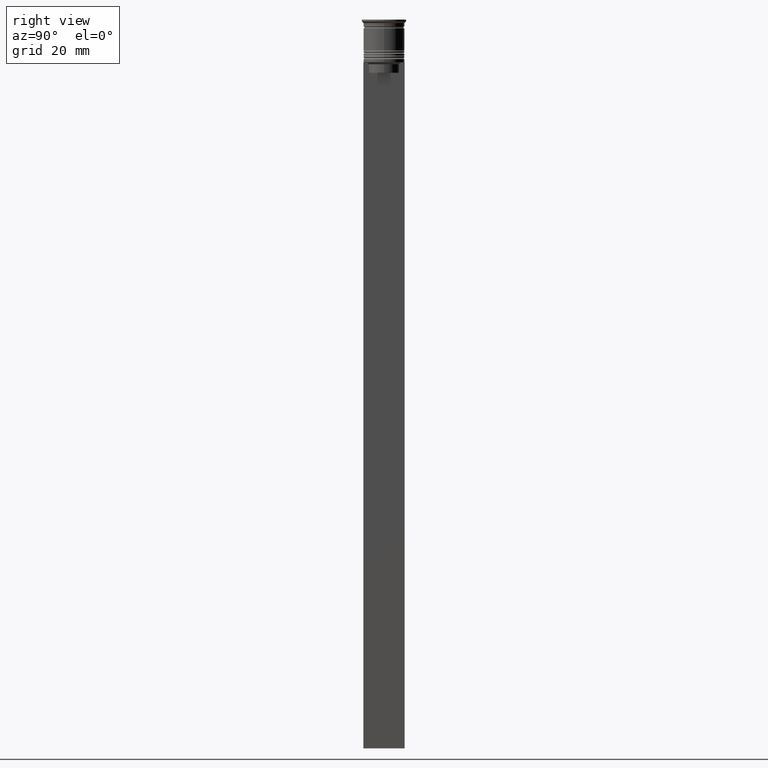
[diagram: clean part render]
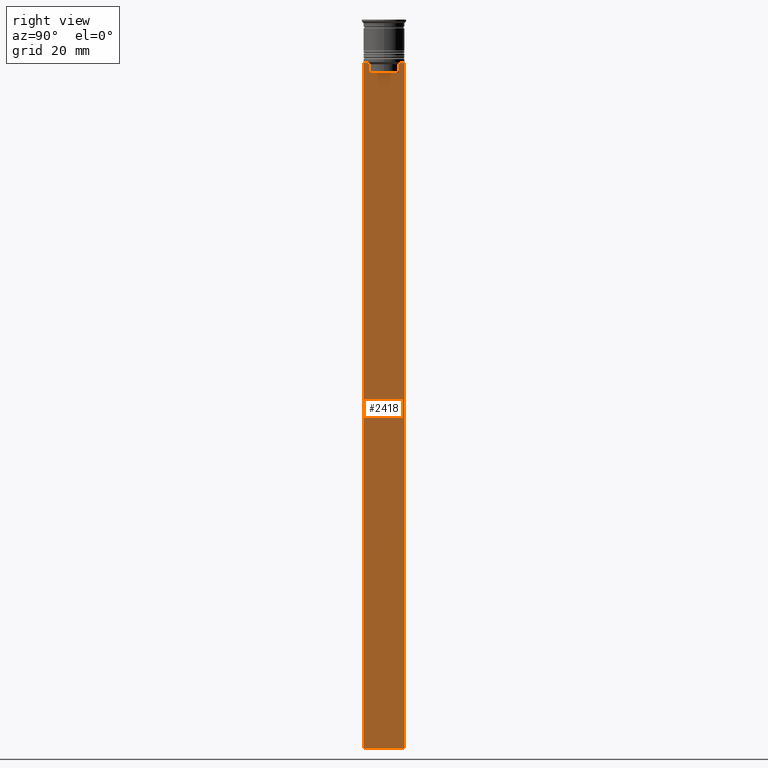
[diagram: same view with one face highlighted and labeled with its STEP entity id]
A machine part, right view. The second image highlights one B-rep face of the part: STEP entity #2418.
In plain terms, the highlighted planar face has unit normal (-1, 0, 0).
Its self-contained STEP definition (entity closure, byte-faithful):
#31 = AXIS2_PLACEMENT_3D ( 'NONE', #1762, #1426, #837 ) ;
#46 = VERTEX_POINT ( 'NONE', #92 ) ;
#53 = VECTOR ( 'NONE', #657, 1000.000000000000000 ) ;
#59 = LINE ( 'NONE', #835, #2350 ) ;
#89 = DIRECTION ( 'NONE',  ( 0.000000000000000000, 0.000000000000000000, -1.000000000000000000 ) ) ;
#92 = CARTESIAN_POINT ( 'NONE',  ( 0.5000000000000002220, -4.371498598878878816, -13.00000000000000178 ) ) ;
#129 = ORIENTED_EDGE ( 'NONE', *, *, #1217, .T. ) ;
#131 = LINE ( 'NONE', #2074, #2451 ) ;
#143 = CARTESIAN_POINT ( 'NONE',  ( 0.5000000000000002220, 6.000000000000000888, -212.5000000000000284 ) ) ;
#156 = CARTESIAN_POINT ( 'NONE',  ( 0.5000000000000002220, 4.874423042781576676, -12.50000000000000000 ) ) ;
#157 = EDGE_CURVE ( 'NONE', #1114, #1414, #1723, .T. ) ;
#160 = ORIENTED_EDGE ( 'NONE', *, *, #1128, .T. ) ;
#186 = EDGE_CURVE ( 'NONE', #46, #1751, #1135, .T. ) ;
#221 = LINE ( 'NONE', #984, #412 ) ;
#226 = DIRECTION ( 'NONE',  ( 0.000000000000000000, -1.000000000000000000, 0.000000000000000000 ) ) ;
#256 = LINE ( 'NONE', #843, #1883 ) ;
#262 = DIRECTION ( 'NONE',  ( -0.000000000000000000, -0.000000000000000000, 1.000000000000000000 ) ) ;
#282 = EDGE_CURVE ( 'NONE', #1434, #46, #59, .T. ) ;
#307 = DIRECTION ( 'NONE',  ( 0.000000000000000000, 1.000000000000000000, 0.000000000000000000 ) ) ;
#329 = CARTESIAN_POINT ( 'NONE',  ( 0.5000000000000002220, -6.000000000000000000, -12.50000000000000000 ) ) ;
#386 = CARTESIAN_POINT ( 'NONE',  ( 0.5000000000000002220, -6.000000000000000000, -12.50000000000000000 ) ) ;
#412 = VECTOR ( 'NONE', #89, 1000.000000000000000 ) ;
#421 = CARTESIAN_POINT ( 'NONE',  ( 0.5000000000000002220, 6.000000000000000888, -12.50000000000000000 ) ) ;
#430 = CARTESIAN_POINT ( 'NONE',  ( 0.5000000000000002220, -4.706831372970962768, -12.66671687695981774 ) ) ;
#436 = CARTESIAN_POINT ( 'NONE',  ( 0.5000000000000002220, 6.000000000000000888, -0.4584054212077061097 ) ) ;
#464 = PLANE ( 'NONE',  #31 ) ;
#507 = EDGE_CURVE ( 'NONE', #1114, #2126, #1947, .T. ) ;
#509 = ORIENTED_EDGE ( 'NONE', *, *, #990, .T. ) ;
#555 = DIRECTION ( 'NONE',  ( 0.000000000000000000, 0.000000000000000000, -1.000000000000000000 ) ) ;
#612 = ORIENTED_EDGE ( 'NONE', *, *, #734, .T. ) ;
#657 = DIRECTION ( 'NONE',  ( 0.000000000000000000, -1.000000000000000000, 0.000000000000000000 ) ) ;
#660 = VECTOR ( 'NONE', #555, 1000.000000000000000 ) ;
#734 = EDGE_CURVE ( 'NONE', #1451, #1434, #256, .T. ) ;
#817 = CARTESIAN_POINT ( 'NONE',  ( 0.5000000000000002220, 4.371498598878878816, -13.00000000000000178 ) ) ;
#821 = EDGE_CURVE ( 'NONE', #1273, #1016, #131, .T. ) ;
#835 = CARTESIAN_POINT ( 'NONE',  ( 0.5000000000000002220, -4.371498598878878816, 0.000000000000000000 ) ) ;
#837 = DIRECTION ( 'NONE',  ( 0.000000000000000000, 0.000000000000000000, 1.000000000000000000 ) ) ;
#843 = CARTESIAN_POINT ( 'NONE',  ( 0.5000000000000002220, 4.399999999999999467, -15.50000000000000000 ) ) ;
#891 = CARTESIAN_POINT ( 'NONE',  ( 0.5000000000000002220, -6.000000000000000000, -0.4584054212077061097 ) ) ;
#917 = CARTESIAN_POINT ( 'NONE',  ( 0.5000000000000002220, -5.878775382679627626, -12.50000000000000000 ) ) ;
#925 = CARTESIAN_POINT ( 'NONE',  ( 0.5000000000000002220, 4.539195634199896467, -12.83338923751318816 ) ) ;
#982 = B_SPLINE_CURVE_WITH_KNOTS ( 'NONE', 3,
 ( #156, #1465, #925, #1842 ),
 .UNSPECIFIED., .F., .F.,
 ( 4, 4 ),
 ( 0.008336552452178421987, 0.009045730124312839626 ),
 .UNSPECIFIED. ) ;
#984 = CARTESIAN_POINT ( 'NONE',  ( 0.5000000000000002220, 4.371498598878878816, 0.000000000000000000 ) ) ;
#986 = ORIENTED_EDGE ( 'NONE', *, *, #1686, .T. ) ;
#990 = EDGE_CURVE ( 'NONE', #1751, #1273, #2464, .T. ) ;
#1013 = CARTESIAN_POINT ( 'NONE',  ( 0.5000000000000002220, -4.874423042781576676, -12.50000000000000000 ) ) ;
#1015 = ORIENTED_EDGE ( 'NONE', *, *, #821, .T. ) ;
#1016 = VERTEX_POINT ( 'NONE', #2484 ) ;
#1021 = ORIENTED_EDGE ( 'NONE', *, *, #186, .T. ) ;
#1114 = VERTEX_POINT ( 'NONE', #421 ) ;
#1128 = EDGE_CURVE ( 'NONE', #1539, #1451, #221, .T. ) ;
#1135 = B_SPLINE_CURVE_WITH_KNOTS ( 'NONE', 3,
 ( #1588, #1430, #430, #1013 ),
 .UNSPECIFIED., .F., .F.,
 ( 4, 4 ),
 ( 0.02089901220910808308, 0.02161421017310286019 ),
 .UNSPECIFIED. ) ;
#1149 = CARTESIAN_POINT ( 'NONE',  ( 0.5000000000000002220, -4.371498598878878816, -15.50000000000000000 ) ) ;
#1204 = VECTOR ( 'NONE', #1898, 1000.000000000000000 ) ;
#1205 = FACE_OUTER_BOUND ( 'NONE', #2362, .T. ) ;
#1217 = EDGE_CURVE ( 'NONE', #1599, #2126, #1257, .T. ) ;
#1225 = CARTESIAN_POINT ( 'NONE',  ( 0.5000000000000002220, -6.000000000000000000, -212.5000000000000284 ) ) ;
#1257 = LINE ( 'NONE', #2028, #1927 ) ;
#1273 = VERTEX_POINT ( 'NONE', #917 ) ;
#1300 = EDGE_CURVE ( 'NONE', #1414, #1502, #2291, .T. ) ;
#1414 = VERTEX_POINT ( 'NONE', #2142 ) ;
#1426 = DIRECTION ( 'NONE',  ( -1.000000000000000000, 0.000000000000000000, 0.000000000000000000 ) ) ;
#1430 = CARTESIAN_POINT ( 'NONE',  ( 0.5000000000000002220, -4.539195586926423331, -12.83338928448044314 ) ) ;
#1434 = VERTEX_POINT ( 'NONE', #1149 ) ;
#1451 = VERTEX_POINT ( 'NONE', #1955 ) ;
#1465 = CARTESIAN_POINT ( 'NONE',  ( 0.5000000000000002220, 4.706831415367288329, -12.66671683478479160 ) ) ;
#1502 = VERTEX_POINT ( 'NONE', #1743 ) ;
#1504 = VECTOR ( 'NONE', #2472, 1000.000000000000000 ) ;
#1535 = DIRECTION ( 'NONE',  ( 0.000000000000000000, 0.000000000000000000, -1.000000000000000000 ) ) ;
#1539 = VERTEX_POINT ( 'NONE', #817 ) ;
#1588 = CARTESIAN_POINT ( 'NONE',  ( 0.5000000000000002220, -4.371498598878878816, -13.00000000000000178 ) ) ;
#1599 = VERTEX_POINT ( 'NONE', #1225 ) ;
#1639 = DIRECTION ( 'NONE',  ( 0.000000000000000000, -1.000000000000000000, 0.000000000000000000 ) ) ;
#1686 = EDGE_CURVE ( 'NONE', #1502, #1539, #982, .T. ) ;
#1695 = CARTESIAN_POINT ( 'NONE',  ( 0.5000000000000002220, -6.000000000000000000, -12.50000000000000000 ) ) ;
#1723 = LINE ( 'NONE', #386, #53 ) ;
#1741 = EDGE_CURVE ( 'NONE', #1016, #1599, #2432, .T. ) ;
#1743 = CARTESIAN_POINT ( 'NONE',  ( 0.5000000000000002220, 4.874423042781576676, -12.50000000000000000 ) ) ;
#1751 = VERTEX_POINT ( 'NONE', #2455 ) ;
#1762 = CARTESIAN_POINT ( 'NONE',  ( 0.5000000000000002220, -6.000000000000000000, -0.4584054212077061097 ) ) ;
#1787 = VECTOR ( 'NONE', #1535, 1000.000000000000000 ) ;
#1796 = ORIENTED_EDGE ( 'NONE', *, *, #282, .T. ) ;
#1842 = CARTESIAN_POINT ( 'NONE',  ( 0.5000000000000002220, 4.371498598878878816, -13.00000000000000178 ) ) ;
#1883 = VECTOR ( 'NONE', #226, 1000.000000000000000 ) ;
#1898 = DIRECTION ( 'NONE',  ( 0.000000000000000000, -1.000000000000000000, 0.000000000000000000 ) ) ;
#1927 = VECTOR ( 'NONE', #307, 1000.000000000000000 ) ;
#1947 = LINE ( 'NONE', #436, #1787 ) ;
#1955 = CARTESIAN_POINT ( 'NONE',  ( 0.5000000000000002220, 4.371498598878878816, -15.50000000000000000 ) ) ;
#2028 = CARTESIAN_POINT ( 'NONE',  ( 0.5000000000000002220, -6.000000000000000000, -212.5000000000000284 ) ) ;
#2050 = ORIENTED_EDGE ( 'NONE', *, *, #507, .F. ) ;
#2074 = CARTESIAN_POINT ( 'NONE',  ( 0.5000000000000002220, -6.000000000000000000, -12.50000000000000000 ) ) ;
#2126 = VERTEX_POINT ( 'NONE', #143 ) ;
#2142 = CARTESIAN_POINT ( 'NONE',  ( 0.5000000000000002220, 5.878775382679627626, -12.50000000000000000 ) ) ;
#2253 = ORIENTED_EDGE ( 'NONE', *, *, #157, .T. ) ;
#2270 = ORIENTED_EDGE ( 'NONE', *, *, #1300, .T. ) ;
#2291 = LINE ( 'NONE', #329, #1504 ) ;
#2339 = ORIENTED_EDGE ( 'NONE', *, *, #1741, .T. ) ;
#2350 = VECTOR ( 'NONE', #262, 1000.000000000000000 ) ;
#2362 = EDGE_LOOP ( 'NONE', ( #2270, #986, #160, #612, #1796, #1021, #509, #1015, #2339, #129, #2050, #2253 ) ) ;
#2418 = ADVANCED_FACE ( 'NONE', ( #1205 ), #464, .F. ) ;
#2432 = LINE ( 'NONE', #891, #660 ) ;
#2451 = VECTOR ( 'NONE', #1639, 1000.000000000000000 ) ;
#2455 = CARTESIAN_POINT ( 'NONE',  ( 0.5000000000000002220, -4.874423042781576676, -12.50000000000000000 ) ) ;
#2464 = LINE ( 'NONE', #1695, #1204 ) ;
#2472 = DIRECTION ( 'NONE',  ( 0.000000000000000000, -1.000000000000000000, 0.000000000000000000 ) ) ;
#2484 = CARTESIAN_POINT ( 'NONE',  ( 0.5000000000000002220, -6.000000000000000000, -12.50000000000000000 ) ) ;